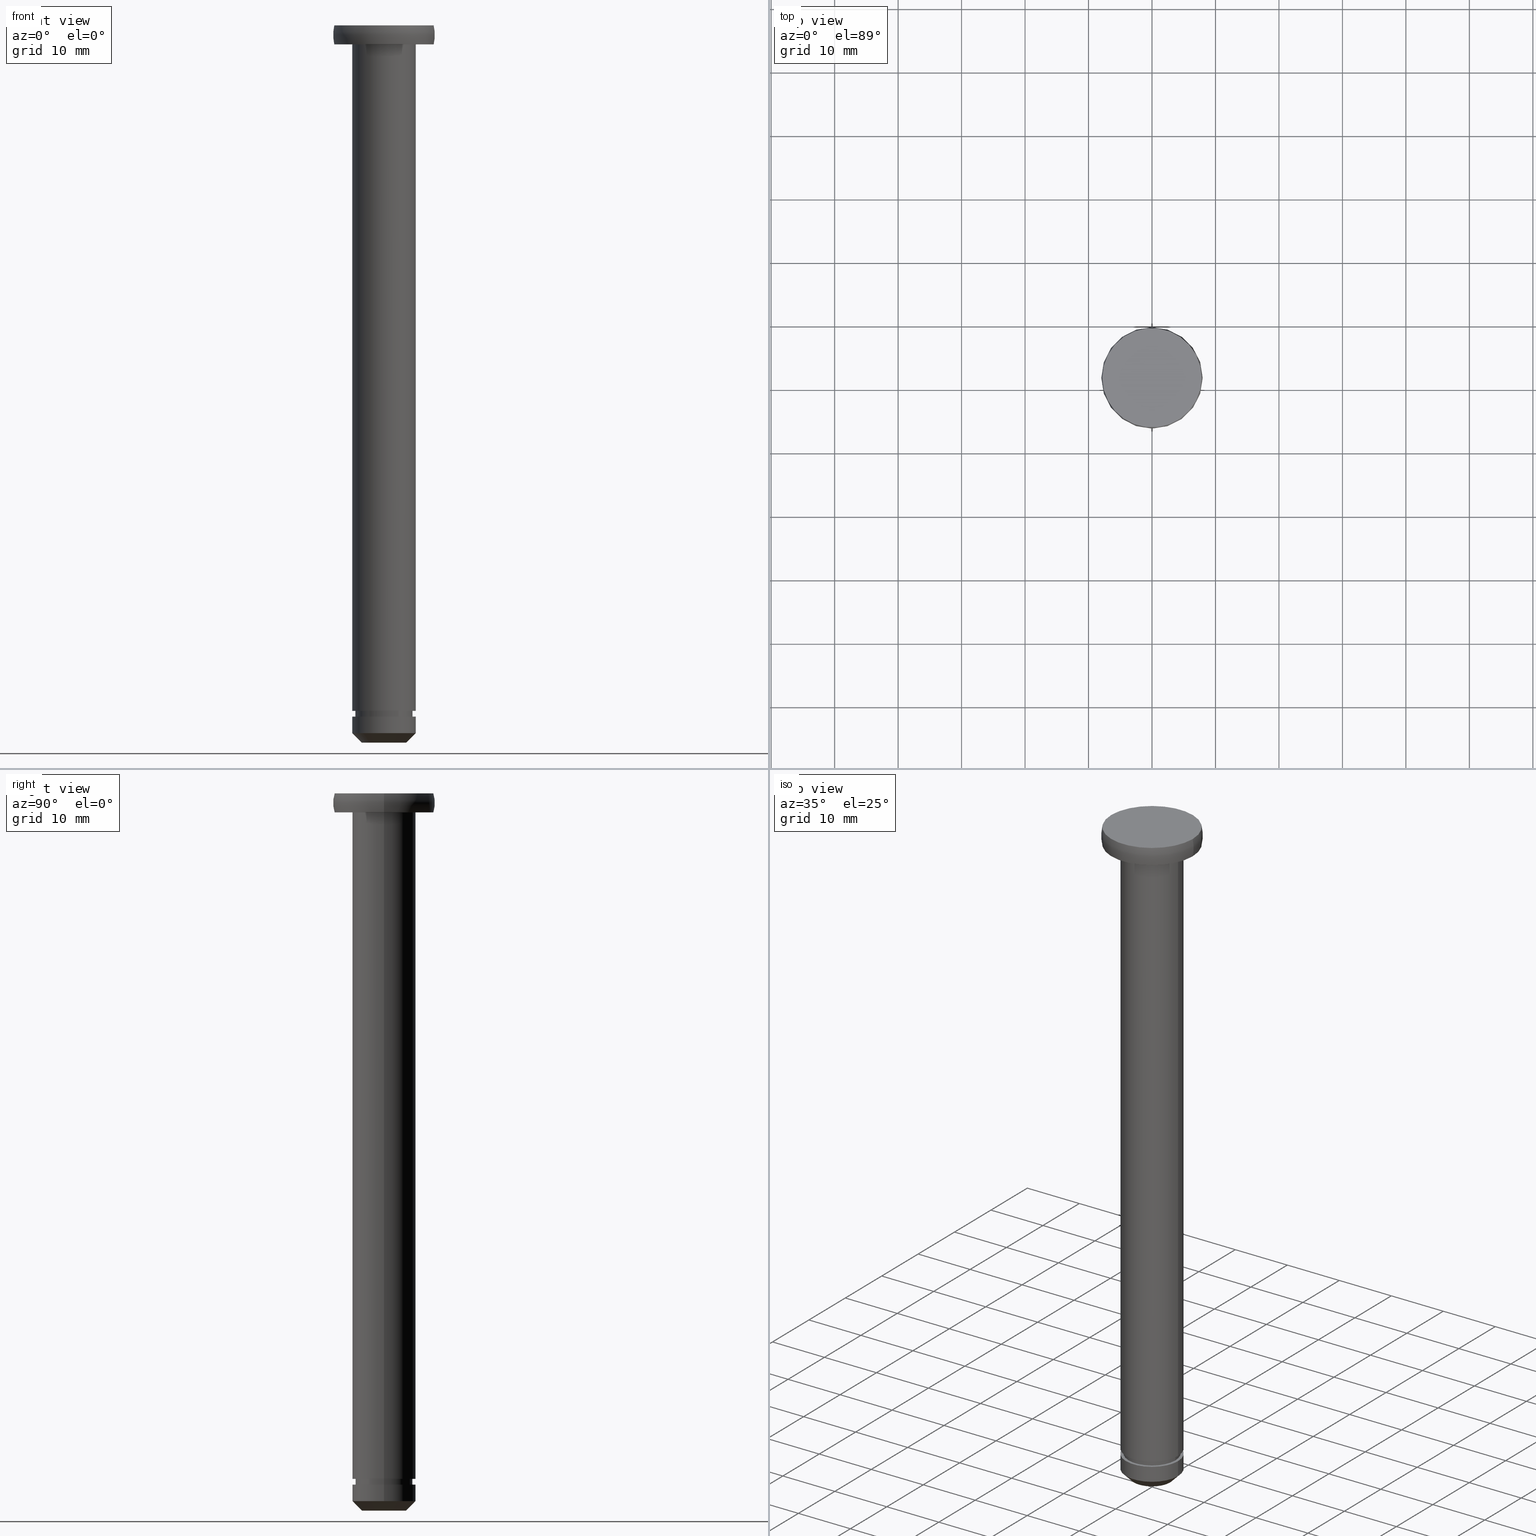
[diagram: canonical four-view strip — front | top / right | iso, engineering-drawing reading convention]
A machine part, canonical four-view strip (front | top / right | iso — engineering-drawing reading convention). The complete STEP part file that produces these views, byte-faithful:
ISO-10303-21;
HEADER;
FILE_DESCRIPTION (( 'STEP AP214' ),
    '1' );
FILE_NAME ('TH_121_10_110.STEP',
    '2016-08-24T02:01:14',
    ( '' ),
    ( '' ),
    'SwSTEP 2.0',
    'SolidWorks 2015',
    '' );
FILE_SCHEMA (( 'AUTOMOTIVE_DESIGN' ));
ENDSEC;

DATA;
#1 =( NAMED_UNIT ( * ) PLANE_ANGLE_UNIT ( ) SI_UNIT ( $, .RADIAN. ) );
#2 = CIRCLE ( 'NONE', #32, 5.000000000000000000 ) ;
#3 = ORIENTED_EDGE ( 'NONE', *, *, #367, .T. ) ;
#4 = APPLICATION_CONTEXT ( 'automotive_design' ) ;
#5 = CIRCLE ( 'NONE', #177, 3.500000000000000900 ) ;
#6 = DIRECTION ( 'NONE',  ( 1.000000000000000000, 0.0000000000000000000, 0.0000000000000000000 ) ) ;
#7 = MECHANICAL_DESIGN_GEOMETRIC_PRESENTATION_REPRESENTATION (  '', ( #426 ), #30 ) ;
#8 = ORIENTED_EDGE ( 'NONE', *, *, #398, .T. ) ;
#9 = TOROIDAL_SURFACE ( 'NONE', #130, 1.357233208769898200, 6.642766791230085800 ) ;
#10 = EDGE_CURVE ( 'NONE', #200, #320, #235, .T. ) ;
#11 = FACE_OUTER_BOUND ( 'NONE', #318, .T. ) ;
#12 = ORIENTED_EDGE ( 'NONE', *, *, #99, .F. ) ;
#13 = ADVANCED_FACE ( 'NONE', ( #199 ), #468, .T. ) ;
#14 = CARTESIAN_POINT ( 'NONE',  ( 4.500000000000000000, 5.510910596163088600E-016, -3.280275378074167100E-014 ) ) ;
#15 = ORIENTED_EDGE ( 'NONE', *, *, #66, .F. ) ;
#16 = AXIS2_PLACEMENT_3D ( 'NONE', #266, #382, #212 ) ;
#17 = CIRCLE ( 'NONE', #107, 4.500000000000000000 ) ;
#18 = TOROIDAL_SURFACE ( 'NONE', #279, 1.357233208769898200, 6.642766791230085800 ) ;
#19 = ORIENTED_EDGE ( 'NONE', *, *, #77, .T. ) ;
#20 = CYLINDRICAL_SURFACE ( 'NONE', #455, 4.999999999999999100 ) ;
#21 = PLANE ( 'NONE',  #150 ) ;
#22 = ORIENTED_EDGE ( 'NONE', *, *, #40, .F. ) ;
#23 = DIRECTION ( 'NONE',  ( -1.000000000000000000, 0.0000000000000000000, 0.0000000000000000000 ) ) ;
#24 = CIRCLE ( 'NONE', #52, 3.500000000000000900 ) ;
#25 = EDGE_CURVE ( 'NONE', #250, #443, #406, .T. ) ;
#26 = DIRECTION ( 'NONE',  ( -1.000000000000000000, 0.0000000000000000000, 0.0000000000000000000 ) ) ;
#27 = EDGE_CURVE ( 'NONE', #417, #320, #2, .T. ) ;
#28 = DIRECTION ( 'NONE',  ( 0.0000000000000000000, 0.0000000000000000000, -1.000000000000000000 ) ) ;
#29 = ORIENTED_EDGE ( 'NONE', *, *, #420, .F. ) ;
#30 =( GEOMETRIC_REPRESENTATION_CONTEXT ( 3 ) GLOBAL_UNCERTAINTY_ASSIGNED_CONTEXT ( ( #65 ) ) GLOBAL_UNIT_ASSIGNED_CONTEXT ( ( #275, #205, #69 ) ) REPRESENTATION_CONTEXT ( 'NONE', 'WORKASPACE' ) );
#31 = DIRECTION ( 'NONE',  ( 0.0000000000000000000, 0.0000000000000000000, -1.000000000000000000 ) ) ;
#32 = AXIS2_PLACEMENT_3D ( 'NONE', #410, #378, #120 ) ;
#33 = DIRECTION ( 'NONE',  ( 0.0000000000000000000, 0.0000000000000000000, -1.000000000000000000 ) ) ;
#34 = CIRCLE ( 'NONE', #294, 5.000000000000000000 ) ;
#35 = CARTESIAN_POINT ( 'NONE',  ( 3.500000000000000900, 0.0000000000000000000, -113.0000000360870000 ) ) ;
#36 = AXIS2_PLACEMENT_3D ( 'NONE', #284, #303, #53 ) ;
#37 = CARTESIAN_POINT ( 'NONE',  ( 0.0000000000000000000, 0.0000000000000000000, 0.0000000000000000000 ) ) ;
#38 = DIRECTION ( 'NONE',  ( 0.0000000000000000000, 0.0000000000000000000, -1.000000000000000000 ) ) ;
#39 = ORIENTED_EDGE ( 'NONE', *, *, #163, .T. ) ;
#40 = EDGE_CURVE ( 'NONE', #93, #78, #370, .T. ) ;
#41 = APPLICATION_PROTOCOL_DEFINITION ( 'draft international standard', 'automotive_design', 1998, #350 ) ;
#42 =( LENGTH_UNIT ( ) NAMED_UNIT ( * ) SI_UNIT ( .MILLI., .METRE. ) );
#43 = ORIENTED_EDGE ( 'NONE', *, *, #257, .F. ) ;
#44 = ADVANCED_FACE ( 'NONE', ( #357, #91 ), #252, .T. ) ;
#45 = EDGE_CURVE ( 'NONE', #320, #417, #445, .T. ) ;
#46 = SURFACE_STYLE_FILL_AREA ( #245 ) ;
#47 = PLANE ( 'NONE',  #429 ) ;
#48 = ORIENTED_EDGE ( 'NONE', *, *, #388, .F. ) ;
#49 = AXIS2_PLACEMENT_3D ( 'NONE', #434, #114, #408 ) ;
#50 = DIRECTION ( 'NONE',  ( 0.0000000000000000000, 0.0000000000000000000, -1.000000000000000000 ) ) ;
#51 = PRODUCT ( 'shaft', 'shaft', '', ( #403 ) ) ;
#52 = AXIS2_PLACEMENT_3D ( 'NONE', #57, #287, #407 ) ;
#53 = DIRECTION ( 'NONE',  ( -1.000000000000000000, 0.0000000000000000000, 0.0000000000000000000 ) ) ;
#54 = DIRECTION ( 'NONE',  ( -1.000000000000000000, 0.0000000000000000000, 0.0000000000000000000 ) ) ;
#55 =( LENGTH_UNIT ( ) NAMED_UNIT ( * ) SI_UNIT ( .MILLI., .METRE. ) );
#56 = VECTOR ( 'NONE', #215, 1000.000000000000000 ) ;
#57 = CARTESIAN_POINT ( 'NONE',  ( 0.0000000000000000000, 0.0000000000000000000, -113.0000000360870000 ) ) ;
#58 = ORIENTED_EDGE ( 'NONE', *, *, #160, .F. ) ;
#59 = ORIENTED_EDGE ( 'NONE', *, *, #309, .T. ) ;
#60 = DIRECTION ( 'NONE',  ( -1.000000000000000000, 0.0000000000000000000, 0.0000000000000000000 ) ) ;
#61 =( REPRESENTATION_RELATIONSHIP ('NONE','NONE', #96, #459 ) REPRESENTATION_RELATIONSHIP_WITH_TRANSFORMATION ( #169 )SHAPE_REPRESENTATION_RELATIONSHIP( ) );
#62 = EDGE_LOOP ( 'NONE', ( #327, #223, #379, #467 ) ) ;
#63 = FACE_OUTER_BOUND ( 'NONE', #299, .T. ) ;
#64 = EDGE_CURVE ( 'NONE', #78, #190, #247, .T. ) ;
#65 = UNCERTAINTY_MEASURE_WITH_UNIT (LENGTH_MEASURE( 1.000000000000000100E-005 ), #275, 'distance_accuracy_value', 'NONE');
#66 = EDGE_CURVE ( 'NONE', #193, #290, #328, .T. ) ;
#67 = ORIENTED_EDGE ( 'NONE', *, *, #158, .T. ) ;
#68 = CYLINDRICAL_SURFACE ( 'NONE', #383, 4.500000000000000000 ) ;
#69 =( NAMED_UNIT ( * ) SI_UNIT ( $, .STERADIAN. ) SOLID_ANGLE_UNIT ( ) );
#70 = SHAPE_REPRESENTATION_RELATIONSHIP ( 'NONE' , 'NONE' ,  #459, #413 ) ;
#71 = FACE_BOUND ( 'NONE', #224, .T. ) ;
#72 = DIRECTION ( 'NONE',  ( -1.000000000000000000, 0.0000000000000000000, 0.0000000000000000000 ) ) ;
#73 = CIRCLE ( 'NONE', #125, 7.828427118366799500 ) ;
#74 = DIRECTION ( 'NONE',  ( 0.0000000000000000000, 0.0000000000000000000, -1.000000000000000000 ) ) ;
#75 = ORIENTED_EDGE ( 'NONE', *, *, #27, .F. ) ;
#76 = FACE_OUTER_BOUND ( 'NONE', #126, .T. ) ;
#77 = EDGE_CURVE ( 'NONE', #262, #151, #73, .T. ) ;
#78 = VERTEX_POINT ( 'NONE', #259 ) ;
#79 = ADVANCED_FACE ( 'NONE', ( #387, #397 ), #21, .T. ) ;
#80 = CARTESIAN_POINT ( 'NONE',  ( 0.0000000000000000000, 0.0000000000000000000, -108.0000000360869900 ) ) ;
#81 = VERTEX_POINT ( 'NONE', #373 ) ;
#82 = CONICAL_SURFACE ( 'NONE', #304, 3.500000000000000900, 0.7853981633974466100 ) ;
#83 = LINE ( 'NONE', #355, #438 ) ;
#84 = AXIS2_PLACEMENT_3D ( 'NONE', #305, #50, #268 ) ;
#85 = DIRECTION ( 'NONE',  ( 0.0000000000000000000, 0.0000000000000000000, -1.000000000000000000 ) ) ;
#86 = CIRCLE ( 'NONE', #244, 5.000000000000000000 ) ;
#87 = ORIENTED_EDGE ( 'NONE', *, *, #158, .F. ) ;
#88 = CARTESIAN_POINT ( 'NONE',  ( 4.999999999999997300, 0.0000000000000000000, -111.5000000360870000 ) ) ;
#89 = LINE ( 'NONE', #134, #376 ) ;
#90 = DIRECTION ( 'NONE',  ( 0.0000000000000000000, 0.0000000000000000000, -1.000000000000000000 ) ) ;
#91 = FACE_OUTER_BOUND ( 'NONE', #267, .T. ) ;
#92 = EDGE_CURVE ( 'NONE', #324, #203, #34, .T. ) ;
#93 = VERTEX_POINT ( 'NONE', #261 ) ;
#94 = AXIS2_PLACEMENT_3D ( 'NONE', #37, #211, #97 ) ;
#95 = CARTESIAN_POINT ( 'NONE',  ( 7.828427118366799500, 9.587058212866239700E-016, -3.280275356898344000E-014 ) ) ;
#96 = SHAPE_REPRESENTATION ( 'TH_121_10_110', ( #164, #123 ), #142 ) ;
#97 = DIRECTION ( 'NONE',  ( 1.000000000000000000, 0.0000000000000000000, 0.0000000000000000000 ) ) ;
#98 = CARTESIAN_POINT ( 'NONE',  ( 0.0000000000000000000, 0.0000000000000000000, -113.0000000360870000 ) ) ;
#99 = EDGE_CURVE ( 'NONE', #203, #159, #83, .T. ) ;
#100 = CARTESIAN_POINT ( 'NONE',  ( 0.0000000000000000000, 0.0000000000000000000, -108.0000000360869900 ) ) ;
#101 = EDGE_LOOP ( 'NONE', ( #8, #447 ) ) ;
#102 = CARTESIAN_POINT ( 'NONE',  ( -3.500000000000000900, 5.204748896376249700E-016, -113.0000000360870000 ) ) ;
#103 = FACE_OUTER_BOUND ( 'NONE', #234, .T. ) ;
#104 = MANIFOLD_SOLID_BREP ( '��]1', #419 ) ;
#105 = DIRECTION ( 'NONE',  ( 0.7071067811865463500, 0.0000000000000000000, 0.7071067811865487900 ) ) ;
#106 = CIRCLE ( 'NONE', #197, 5.000000000000000000 ) ;
#107 = AXIS2_PLACEMENT_3D ( 'NONE', #100, #427, #60 ) ;
#108 =( NAMED_UNIT ( * ) PLANE_ANGLE_UNIT ( ) SI_UNIT ( $, .RADIAN. ) );
#109 =( NAMED_UNIT ( * ) SI_UNIT ( $, .STERADIAN. ) SOLID_ANGLE_UNIT ( ) );
#110 = PRODUCT_DEFINITION_SHAPE ( 'NONE', 'NONE',  #232 ) ;
#111 = SURFACE_SIDE_STYLE ('',( #46 ) ) ;
#112 = DIRECTION ( 'NONE',  ( 1.000000000000000000, 0.0000000000000000000, 0.0000000000000000000 ) ) ;
#113 = ORIENTED_EDGE ( 'NONE', *, *, #396, .F. ) ;
#114 = DIRECTION ( 'NONE',  ( 0.0000000000000000000, 0.0000000000000000000, -1.000000000000000000 ) ) ;
#115 = EDGE_LOOP ( 'NONE', ( #29, #371 ) ) ;
#116 = DIRECTION ( 'NONE',  ( 0.0000000000000000000, -0.0000000000000000000, 1.000000000000000000 ) ) ;
#117 = ORIENTED_EDGE ( 'NONE', *, *, #388, .T. ) ;
#118 = CIRCLE ( 'NONE', #326, 4.500000000000000000 ) ;
#119 = ADVANCED_FACE ( 'NONE', ( #103 ), #9, .T. ) ;
#120 = DIRECTION ( 'NONE',  ( -1.000000000000000000, 0.0000000000000000000, 0.0000000000000000000 ) ) ;
#121 = ADVANCED_FACE ( 'NONE', ( #152, #71 ), #47, .T. ) ;
#122 = EDGE_LOOP ( 'NONE', ( #463, #117, #3, #213 ) ) ;
#123 = AXIS2_PLACEMENT_3D ( 'NONE', #464, #236, #6 ) ;
#124 = DIRECTION ( 'NONE',  ( 0.0000000000000000000, 0.0000000000000000000, -1.000000000000000000 ) ) ;
#125 = AXIS2_PLACEMENT_3D ( 'NONE', #280, #191, #210 ) ;
#126 = EDGE_LOOP ( 'NONE', ( #113, #453, #219, #366 ) ) ;
#127 = DIRECTION ( 'NONE',  ( 0.0000000000000000000, 0.0000000000000000000, -1.000000000000000000 ) ) ;
#128 = DIRECTION ( 'NONE',  ( 1.000000000000000000, 0.0000000000000000000, 0.0000000000000000000 ) ) ;
#129 = EDGE_LOOP ( 'NONE', ( #180, #67, #207, #183 ) ) ;
#130 = AXIS2_PLACEMENT_3D ( 'NONE', #361, #146, #402 ) ;
#131 = AXIS2_PLACEMENT_3D ( 'NONE', #136, #349, #23 ) ;
#132 = ORIENTED_EDGE ( 'NONE', *, *, #335, .T. ) ;
#133 = ORIENTED_EDGE ( 'NONE', *, *, #10, .T. ) ;
#134 = CARTESIAN_POINT ( 'NONE',  ( 4.999999999999999100, 6.123233995736765300E-016, -3.280275378074167100E-014 ) ) ;
#135 = CARTESIAN_POINT ( 'NONE',  ( 0.0000000000000000000, 0.0000000000000000000, -3.000000018043495100 ) ) ;
#136 = CARTESIAN_POINT ( 'NONE',  ( 0.0000000000000000000, 0.0000000000000000000, -108.9000000360869900 ) ) ;
#137 = CARTESIAN_POINT ( 'NONE',  ( -5.000000000000000000, 0.0000000000000000000, -3.280275378074167100E-014 ) ) ;
#138 = CARTESIAN_POINT ( 'NONE',  ( 5.000000000000000000, 6.123233995736766300E-016, -3.280275378074167100E-014 ) ) ;
#139 = DIRECTION ( 'NONE',  ( -1.000000000000000000, 0.0000000000000000000, 0.0000000000000000000 ) ) ;
#140 = CARTESIAN_POINT ( 'NONE',  ( 0.0000000000000000000, 0.0000000000000000000, 0.0000000000000000000 ) ) ;
#141 = CARTESIAN_POINT ( 'NONE',  ( 0.0000000000000000000, 0.0000000000000000000, -3.280275378074167100E-014 ) ) ;
#142 =( GEOMETRIC_REPRESENTATION_CONTEXT ( 3 ) GLOBAL_UNCERTAINTY_ASSIGNED_CONTEXT ( ( #185 ) ) GLOBAL_UNIT_ASSIGNED_CONTEXT ( ( #55, #1, #109 ) ) REPRESENTATION_CONTEXT ( 'NONE', 'WORKASPACE' ) );
#143 = DIRECTION ( 'NONE',  ( -1.000000000000000000, 0.0000000000000000000, -0.0000000000000000000 ) ) ;
#144 = DIRECTION ( 'NONE',  ( 1.000000000000000000, 0.0000000000000000000, 0.0000000000000000000 ) ) ;
#145 = ORIENTED_EDGE ( 'NONE', *, *, #188, .T. ) ;
#146 = DIRECTION ( 'NONE',  ( 0.0000000000000000000, 0.0000000000000000000, -1.000000000000000000 ) ) ;
#147 = CARTESIAN_POINT ( 'NONE',  ( 0.0000000000000000000, 0.0000000000000000000, -3.280275378074167100E-014 ) ) ;
#148 = ADVANCED_FACE ( 'NONE', ( #11 ), #248, .T. ) ;
#149 = AXIS2_PLACEMENT_3D ( 'NONE', #167, #424, #139 ) ;
#150 = AXIS2_PLACEMENT_3D ( 'NONE', #241, #220, #297 ) ;
#151 = VERTEX_POINT ( 'NONE', #221 ) ;
#152 = FACE_OUTER_BOUND ( 'NONE', #286, .T. ) ;
#153 = CARTESIAN_POINT ( 'NONE',  ( 0.0000000000000000000, 0.0000000000000000000, -108.9000000360869900 ) ) ;
#154 = LINE ( 'NONE', #138, #329 ) ;
#155 = EDGE_LOOP ( 'NONE', ( #19, #145 ) ) ;
#156 = COLOUR_RGB ( '',0.7921568627450980000, 0.8196078431372548800, 0.9333333333333333500 ) ;
#157 = PRODUCT_CONTEXT ( 'NONE', #350, 'mechanical' ) ;
#158 = EDGE_CURVE ( 'NONE', #81, #417, #154, .T. ) ;
#159 = VERTEX_POINT ( 'NONE', #365 ) ;
#160 = EDGE_CURVE ( 'NONE', #290, #193, #258, .T. ) ;
#161 = FACE_OUTER_BOUND ( 'NONE', #101, .T. ) ;
#162 = DIRECTION ( 'NONE',  ( 0.0000000000000000000, -0.0000000000000000000, 1.000000000000000000 ) ) ;
#163 = EDGE_CURVE ( 'NONE', #182, #190, #418, .T. ) ;
#164 = AXIS2_PLACEMENT_3D ( 'NONE', #140, #390, #112 ) ;
#165 = DIRECTION ( 'NONE',  ( -1.000000000000000000, -1.224646799147353200E-016, 0.0000000000000000000 ) ) ;
#166 = EDGE_LOOP ( 'NONE', ( #87, #277, #133, #75 ) ) ;
#167 = CARTESIAN_POINT ( 'NONE',  ( 0.0000000000000000000, 0.0000000000000000000, -3.280275378074167100E-014 ) ) ;
#168 = PRESENTATION_STYLE_ASSIGNMENT (( #321 ) ) ;
#169 = ITEM_DEFINED_TRANSFORMATION ( 'NONE', 'NONE', #123,  #405 ) ;
#170 = CARTESIAN_POINT ( 'NONE',  ( -7.828427118366799500, 0.0000000000000000000, -3.280275356898344000E-014 ) ) ;
#171 = DIRECTION ( 'NONE',  ( 0.0000000000000000000, 0.0000000000000000000, -1.000000000000000000 ) ) ;
#172 = CARTESIAN_POINT ( 'NONE',  ( -5.000000000000000000, 0.0000000000000000000, -108.9000000360869900 ) ) ;
#173 = ORIENTED_EDGE ( 'NONE', *, *, #25, .T. ) ;
#174 = DIRECTION ( 'NONE',  ( 0.0000000000000000000, 0.0000000000000000000, -1.000000000000000000 ) ) ;
#175 = CARTESIAN_POINT ( 'NONE',  ( 0.0000000000000000000, 0.0000000000000000000, -1.500000009021790000 ) ) ;
#176 = DIRECTION ( 'NONE',  ( 0.0000000000000000000, 0.0000000000000000000, -1.000000000000000000 ) ) ;
#177 = AXIS2_PLACEMENT_3D ( 'NONE', #421, #454, #272 ) ;
#178 = APPLICATION_PROTOCOL_DEFINITION ( 'draft international standard', 'automotive_design', 1998, #274 ) ;
#179 = CARTESIAN_POINT ( 'NONE',  ( -4.500000000000000000, 0.0000000000000000000, -3.280275378074167100E-014 ) ) ;
#180 = ORIENTED_EDGE ( 'NONE', *, *, #420, .T. ) ;
#181 = CARTESIAN_POINT ( 'NONE',  ( 0.0000000000000000000, 0.0000000000000000000, -3.000000018043520000 ) ) ;
#182 = VERTEX_POINT ( 'NONE', #306 ) ;
#183 = ORIENTED_EDGE ( 'NONE', *, *, #10, .F. ) ;
#184 = ADVANCED_FACE ( 'NONE', ( #189 ), #18, .T. ) ;
#185 = UNCERTAINTY_MEASURE_WITH_UNIT (LENGTH_MEASURE( 1.000000000000000100E-005 ), #55, 'distance_accuracy_value', 'NONE');
#186 = DIRECTION ( 'NONE',  ( 1.000000000000000000, 0.0000000000000000000, 0.0000000000000000000 ) ) ;
#187 = VECTOR ( 'NONE', #425, 999.9999999999998900 ) ;
#188 = EDGE_CURVE ( 'NONE', #151, #262, #330, .T. ) ;
#189 = FACE_OUTER_BOUND ( 'NONE', #450, .T. ) ;
#190 = VERTEX_POINT ( 'NONE', #362 ) ;
#191 = DIRECTION ( 'NONE',  ( 0.0000000000000000000, 0.0000000000000000000, -1.000000000000000000 ) ) ;
#192 = PRODUCT_DEFINITION ( 'UNKNOWN', '', #310, #449 ) ;
#193 = VERTEX_POINT ( 'NONE', #170 ) ;
#194 = ORIENTED_EDGE ( 'NONE', *, *, #394, .F. ) ;
#195 = DIRECTION ( 'NONE',  ( 0.0000000000000000000, 0.0000000000000000000, 1.000000000000000000 ) ) ;
#196 = CIRCLE ( 'NONE', #84, 4.999999999999997300 ) ;
#197 = AXIS2_PLACEMENT_3D ( 'NONE', #430, #28, #54 ) ;
#198 = ORIENTED_EDGE ( 'NONE', *, *, #27, .T. ) ;
#199 = FACE_OUTER_BOUND ( 'NONE', #166, .T. ) ;
#200 = VERTEX_POINT ( 'NONE', #351 ) ;
#201 = STYLED_ITEM ( 'NONE', ( #168 ), #104 ) ;
#202 = DIRECTION ( 'NONE',  ( 1.000000000000000000, 0.0000000000000000000, 0.0000000000000000000 ) ) ;
#203 = VERTEX_POINT ( 'NONE', #172 ) ;
#204 = CARTESIAN_POINT ( 'NONE',  ( 0.0000000000000000000, 0.0000000000000000000, -113.0000000360870000 ) ) ;
#205 =( NAMED_UNIT ( * ) PLANE_ANGLE_UNIT ( ) SI_UNIT ( $, .RADIAN. ) );
#206 = DIRECTION ( 'NONE',  ( 0.0000000000000000000, 0.0000000000000000000, -1.000000000000000000 ) ) ;
#207 = ORIENTED_EDGE ( 'NONE', *, *, #45, .F. ) ;
#208 = DIRECTION ( 'NONE',  ( 0.0000000000000000000, 0.0000000000000000000, -1.000000000000000000 ) ) ;
#209 = DIRECTION ( 'NONE',  ( 1.000000000000000000, 0.0000000000000000000, 0.0000000000000000000 ) ) ;
#210 = DIRECTION ( 'NONE',  ( -1.000000000000000000, 0.0000000000000000000, 0.0000000000000000000 ) ) ;
#211 = DIRECTION ( 'NONE',  ( 0.0000000000000000000, 0.0000000000000000000, 1.000000000000000000 ) ) ;
#212 = DIRECTION ( 'NONE',  ( 0.0000000000000000000, 0.0000000000000000000, -1.000000000000000000 ) ) ;
#213 = ORIENTED_EDGE ( 'NONE', *, *, #25, .F. ) ;
#214 = AXIS2_PLACEMENT_3D ( 'NONE', #363, #124, #331 ) ;
#215 = DIRECTION ( 'NONE',  ( 0.0000000000000000000, 0.0000000000000000000, -1.000000000000000000 ) ) ;
#216 = DIRECTION ( 'NONE',  ( 0.0000000000000000000, 0.0000000000000000000, -1.000000000000000000 ) ) ;
#217 = VERTEX_POINT ( 'NONE', #102 ) ;
#218 = ADVANCED_FACE ( 'NONE', ( #76 ), #296, .T. ) ;
#219 = ORIENTED_EDGE ( 'NONE', *, *, #99, .T. ) ;
#220 = DIRECTION ( 'NONE',  ( 0.0000000000000000000, 0.0000000000000000000, -1.000000000000000000 ) ) ;
#221 = CARTESIAN_POINT ( 'NONE',  ( 7.828427118366799500, 9.587058212866239700E-016, -3.000000018043520000 ) ) ;
#222 = CIRCLE ( 'NONE', #16, 6.642766791230085800 ) ;
#223 = ORIENTED_EDGE ( 'NONE', *, *, #40, .T. ) ;
#224 = EDGE_LOOP ( 'NONE', ( #43, #194 ) ) ;
#225 = PRESENTATION_STYLE_ASSIGNMENT (( #386 ) ) ;
#226 = CIRCLE ( 'NONE', #412, 4.500000000000000000 ) ;
#227 =( GEOMETRIC_REPRESENTATION_CONTEXT ( 3 ) GLOBAL_UNCERTAINTY_ASSIGNED_CONTEXT ( ( #229 ) ) GLOBAL_UNIT_ASSIGNED_CONTEXT ( ( #364, #108, #316 ) ) REPRESENTATION_CONTEXT ( 'NONE', 'WORKASPACE' ) );
#228 =( NAMED_UNIT ( * ) SI_UNIT ( $, .STERADIAN. ) SOLID_ANGLE_UNIT ( ) );
#229 = UNCERTAINTY_MEASURE_WITH_UNIT (LENGTH_MEASURE( 1.000000000000000100E-005 ), #364, 'distance_accuracy_value', 'NONE');
#230 = PRODUCT ( 'TH_121_10_110', 'TH_121_10_110', '', ( #157 ) ) ;
#231 = APPLICATION_PROTOCOL_DEFINITION ( 'draft international standard', 'automotive_design', 1998, #465 ) ;
#232 = PRODUCT_DEFINITION ( 'UNKNOWN', '', #263, #422 ) ;
#233 = CARTESIAN_POINT ( 'NONE',  ( 7.828427118366799500, 0.0000000000000000000, -3.280275367486255800E-014 ) ) ;
#234 = EDGE_LOOP ( 'NONE', ( #358, #391, #302, #293 ) ) ;
#235 = LINE ( 'NONE', #137, #451 ) ;
#236 = DIRECTION ( 'NONE',  ( 0.0000000000000000000, 0.0000000000000000000, 1.000000000000000000 ) ) ;
#237 = FACE_OUTER_BOUND ( 'NONE', #129, .T. ) ;
#238 = CARTESIAN_POINT ( 'NONE',  ( 0.0000000000000000000, 0.0000000000000000000, -113.0000000360870000 ) ) ;
#239 = ORIENTED_EDGE ( 'NONE', *, *, #45, .T. ) ;
#240 = DIRECTION ( 'NONE',  ( -1.000000000000000000, 0.0000000000000000000, 0.0000000000000000000 ) ) ;
#241 = CARTESIAN_POINT ( 'NONE',  ( 5.000000000000000000, 0.0000000000000000000, -3.000000018043507600 ) ) ;
#242 = DIRECTION ( 'NONE',  ( -0.0000000000000000000, -0.0000000000000000000, 1.000000000000000000 ) ) ;
#243 = APPLICATION_PROTOCOL_DEFINITION ( 'draft international standard', 'automotive_design', 1998, #4 ) ;
#244 = AXIS2_PLACEMENT_3D ( 'NONE', #135, #176, #317 ) ;
#245 = FILL_AREA_STYLE ('',( #313 ) ) ;
#246 = FILL_AREA_STYLE ('',( #462 ) ) ;
#247 = CIRCLE ( 'NONE', #214, 4.500000000000000000 ) ;
#248 = CONICAL_SURFACE ( 'NONE', #461, 3.500000000000000900, 0.7853981633974466100 ) ;
#249 = DIRECTION ( 'NONE',  ( -1.000000000000000000, 0.0000000000000000000, 0.0000000000000000000 ) ) ;
#250 = VERTEX_POINT ( 'NONE', #35 ) ;
#251 = ADVANCED_FACE ( 'NONE', ( #380 ), #68, .T. ) ;
#252 = PLANE ( 'NONE',  #260 ) ;
#253 = AXIS2_PLACEMENT_3D ( 'NONE', #181, #206, #314 ) ;
#254 = ORIENTED_EDGE ( 'NONE', *, *, #64, .F. ) ;
#255 = ADVANCED_FACE ( 'NONE', ( #334 ), #82, .T. ) ;
#256 = AXIS2_PLACEMENT_3D ( 'NONE', #80, #85, #414 ) ;
#257 = EDGE_CURVE ( 'NONE', #182, #93, #118, .T. ) ;
#258 = CIRCLE ( 'NONE', #49, 7.828427118366799500 ) ;
#259 = CARTESIAN_POINT ( 'NONE',  ( 4.500000000000000000, 5.510910596163088600E-016, -108.9000000360869900 ) ) ;
#260 = AXIS2_PLACEMENT_3D ( 'NONE', #368, #116, #144 ) ;
#261 = CARTESIAN_POINT ( 'NONE',  ( 4.500000000000000000, 5.510910596163088600E-016, -108.0000000360869900 ) ) ;
#262 = VERTEX_POINT ( 'NONE', #336 ) ;
#263 = PRODUCT_DEFINITION_FORMATION_WITH_SPECIFIED_SOURCE ( 'ANY', '', #230, .NOT_KNOWN. ) ;
#264 = SHAPE_DEFINITION_REPRESENTATION ( #344, #459 ) ;
#265 = MECHANICAL_DESIGN_GEOMETRIC_PRESENTATION_REPRESENTATION (  '', ( #201 ), #227 ) ;
#266 = CARTESIAN_POINT ( 'NONE',  ( -1.357233208769898200, 0.0000000000000000000, -1.500000009021790000 ) ) ;
#267 = EDGE_LOOP ( 'NONE', ( #348, #273 ) ) ;
#268 = DIRECTION ( 'NONE',  ( -1.000000000000000000, 0.0000000000000000000, 0.0000000000000000000 ) ) ;
#269 = ORIENTED_EDGE ( 'NONE', *, *, #64, .T. ) ;
#270 = FACE_OUTER_BOUND ( 'NONE', #384, .T. ) ;
#271 = AXIS2_PLACEMENT_3D ( 'NONE', #233, #162, #128 ) ;
#272 = DIRECTION ( 'NONE',  ( -1.000000000000000000, 0.0000000000000000000, 0.0000000000000000000 ) ) ;
#273 = ORIENTED_EDGE ( 'NONE', *, *, #92, .F. ) ;
#274 = APPLICATION_CONTEXT ( 'automotive_design' ) ;
#275 =( LENGTH_UNIT ( ) NAMED_UNIT ( * ) SI_UNIT ( .MILLI., .METRE. ) );
#276 = DIRECTION ( 'NONE',  ( 0.0000000000000000000, 0.0000000000000000000, -1.000000000000000000 ) ) ;
#277 = ORIENTED_EDGE ( 'NONE', *, *, #409, .T. ) ;
#278 = CARTESIAN_POINT ( 'NONE',  ( 0.0000000000000000000, 0.0000000000000000000, -111.5000000360870000 ) ) ;
#279 = AXIS2_PLACEMENT_3D ( 'NONE', #175, #31, #354 ) ;
#280 = CARTESIAN_POINT ( 'NONE',  ( 0.0000000000000000000, 0.0000000000000000000, -3.000000018043520000 ) ) ;
#281 = ORIENTED_EDGE ( 'NONE', *, *, #188, .F. ) ;
#282 = DIRECTION ( 'NONE',  ( -1.224646799147353200E-016, 1.000000000000000000, 0.0000000000000000000 ) ) ;
#283 = CYLINDRICAL_SURFACE ( 'NONE', #149, 4.500000000000000000 ) ;
#284 = CARTESIAN_POINT ( 'NONE',  ( 0.0000000000000000000, 0.0000000000000000000, -3.280275378074167100E-014 ) ) ;
#285 = CARTESIAN_POINT ( 'NONE',  ( 0.0000000000000000000, 0.0000000000000000000, -3.280275378074167100E-014 ) ) ;
#286 = EDGE_LOOP ( 'NONE', ( #239, #198 ) ) ;
#287 = DIRECTION ( 'NONE',  ( 0.0000000000000000000, 0.0000000000000000000, -1.000000000000000000 ) ) ;
#288 = PRODUCT_RELATED_PRODUCT_CATEGORY ( 'part', '', ( #230 ) ) ;
#289 = DIRECTION ( 'NONE',  ( -1.000000000000000000, 0.0000000000000000000, 0.0000000000000000000 ) ) ;
#290 = VERTEX_POINT ( 'NONE', #95 ) ;
#291 = CARTESIAN_POINT ( 'NONE',  ( 0.0000000000000000000, 0.0000000000000000000, -3.280275356898344000E-014 ) ) ;
#292 = ADVANCED_FACE ( 'NONE', ( #63 ), #20, .T. ) ;
#293 = ORIENTED_EDGE ( 'NONE', *, *, #335, .F. ) ;
#294 = AXIS2_PLACEMENT_3D ( 'NONE', #153, #353, #289 ) ;
#295 = FACE_OUTER_BOUND ( 'NONE', #62, .T. ) ;
#296 = CYLINDRICAL_SURFACE ( 'NONE', #360, 4.999999999999999100 ) ;
#297 = DIRECTION ( 'NONE',  ( -1.000000000000000000, 0.0000000000000000000, -0.0000000000000000000 ) ) ;
#298 = AXIS2_PLACEMENT_3D ( 'NONE', #392, #282, #165 ) ;
#299 = EDGE_LOOP ( 'NONE', ( #312, #404, #337, #12 ) ) ;
#300 = PRESENTATION_LAYER_ASSIGNMENT (  '', '', ( #201 ) ) ;
#301 = CYLINDRICAL_SURFACE ( 'NONE', #36, 5.000000000000000000 ) ;
#302 = ORIENTED_EDGE ( 'NONE', *, *, #77, .F. ) ;
#303 = DIRECTION ( 'NONE',  ( 0.0000000000000000000, 0.0000000000000000000, -1.000000000000000000 ) ) ;
#304 = AXIS2_PLACEMENT_3D ( 'NONE', #98, #359, #209 ) ;
#305 = CARTESIAN_POINT ( 'NONE',  ( 0.0000000000000000000, 0.0000000000000000000, -111.5000000360870000 ) ) ;
#306 = CARTESIAN_POINT ( 'NONE',  ( -4.500000000000000000, 0.0000000000000000000, -108.0000000360869900 ) ) ;
#307 = EDGE_LOOP ( 'NONE', ( #22, #333, #39, #254 ) ) ;
#308 = CARTESIAN_POINT ( 'NONE',  ( 5.000000000000000000, 6.123233995736766300E-016, -108.9000000360869900 ) ) ;
#309 = EDGE_CURVE ( 'NONE', #443, #159, #345, .T. ) ;
#310 = PRODUCT_DEFINITION_FORMATION_WITH_SPECIFIED_SOURCE ( 'ANY', '', #51, .NOT_KNOWN. ) ;
#311 = DIRECTION ( 'NONE',  ( -1.000000000000000000, 0.0000000000000000000, 0.0000000000000000000 ) ) ;
#312 = ORIENTED_EDGE ( 'NONE', *, *, #374, .T. ) ;
#313 = FILL_AREA_STYLE_COLOUR ( '', #156 ) ;
#314 = DIRECTION ( 'NONE',  ( -1.000000000000000000, 0.0000000000000000000, 0.0000000000000000000 ) ) ;
#315 =( NAMED_UNIT ( * ) PLANE_ANGLE_UNIT ( ) SI_UNIT ( $, .RADIAN. ) );
#316 =( NAMED_UNIT ( * ) SI_UNIT ( $, .STERADIAN. ) SOLID_ANGLE_UNIT ( ) );
#317 = DIRECTION ( 'NONE',  ( -1.000000000000000000, 0.0000000000000000000, 0.0000000000000000000 ) ) ;
#318 = EDGE_LOOP ( 'NONE', ( #48, #416, #173, #59 ) ) ;
#319 = DIRECTION ( 'NONE',  ( 0.0000000000000000000, 0.0000000000000000000, -1.000000000000000000 ) ) ;
#320 = VERTEX_POINT ( 'NONE', #322 ) ;
#321 = SURFACE_STYLE_USAGE ( .BOTH. , #111 ) ;
#322 = CARTESIAN_POINT ( 'NONE',  ( -5.000000000000000000, 0.0000000000000000000, -108.0000000360869900 ) ) ;
#323 = SURFACE_STYLE_FILL_AREA ( #246 ) ;
#324 = VERTEX_POINT ( 'NONE', #308 ) ;
#325 = ADVANCED_FACE ( 'NONE', ( #237 ), #301, .T. ) ;
#326 = AXIS2_PLACEMENT_3D ( 'NONE', #400, #458, #343 ) ;
#327 = ORIENTED_EDGE ( 'NONE', *, *, #257, .T. ) ;
#328 = CIRCLE ( 'NONE', #415, 7.828427118366799500 ) ;
#329 = VECTOR ( 'NONE', #74, 1000.000000000000000 ) ;
#330 = CIRCLE ( 'NONE', #253, 7.828427118366799500 ) ;
#331 = DIRECTION ( 'NONE',  ( -1.000000000000000000, 0.0000000000000000000, 0.0000000000000000000 ) ) ;
#332 = PRODUCT_RELATED_PRODUCT_CATEGORY ( 'part', '', ( #51 ) ) ;
#333 = ORIENTED_EDGE ( 'NONE', *, *, #394, .T. ) ;
#334 = FACE_OUTER_BOUND ( 'NONE', #122, .T. ) ;
#335 = EDGE_CURVE ( 'NONE', #193, #262, #222, .T. ) ;
#336 = CARTESIAN_POINT ( 'NONE',  ( -7.828427118366799500, 0.0000000000000000000, -3.000000018043520000 ) ) ;
#337 = ORIENTED_EDGE ( 'NONE', *, *, #367, .F. ) ;
#338 = CARTESIAN_POINT ( 'NONE',  ( 5.000000000000000000, 6.123233995736766300E-016, -108.0000000360869900 ) ) ;
#339 = EDGE_CURVE ( 'NONE', #190, #78, #226, .T. ) ;
#340 = VECTOR ( 'NONE', #446, 1000.000000000000000 ) ;
#341 = PLANE ( 'NONE',  #271 ) ;
#342 =( GEOMETRIC_REPRESENTATION_CONTEXT ( 3 ) GLOBAL_UNCERTAINTY_ASSIGNED_CONTEXT ( ( #456 ) ) GLOBAL_UNIT_ASSIGNED_CONTEXT ( ( #42, #315, #228 ) ) REPRESENTATION_CONTEXT ( 'NONE', 'WORKASPACE' ) );
#343 = DIRECTION ( 'NONE',  ( -1.000000000000000000, 0.0000000000000000000, 0.0000000000000000000 ) ) ;
#344 = PRODUCT_DEFINITION_SHAPE ( 'NONE', 'NONE',  #192 ) ;
#345 = CIRCLE ( 'NONE', #437, 4.999999999999997300 ) ;
#346 = CARTESIAN_POINT ( 'NONE',  ( 0.0000000000000000000, 0.0000000000000000000, -108.9000000360869900 ) ) ;
#347 = EDGE_CURVE ( 'NONE', #217, #250, #24, .T. ) ;
#348 = ORIENTED_EDGE ( 'NONE', *, *, #374, .F. ) ;
#349 = DIRECTION ( 'NONE',  ( 0.0000000000000000000, 0.0000000000000000000, -1.000000000000000000 ) ) ;
#350 = APPLICATION_CONTEXT ( 'automotive_design' ) ;
#351 = CARTESIAN_POINT ( 'NONE',  ( -5.000000000000000000, 0.0000000000000000000, -3.000000018043495100 ) ) ;
#352 = CONTEXT_DEPENDENT_SHAPE_REPRESENTATION ( #61, #431 ) ;
#353 = DIRECTION ( 'NONE',  ( 0.0000000000000000000, 0.0000000000000000000, -1.000000000000000000 ) ) ;
#354 = DIRECTION ( 'NONE',  ( -1.000000000000000000, 0.0000000000000000000, 0.0000000000000000000 ) ) ;
#355 = CARTESIAN_POINT ( 'NONE',  ( -4.999999999999999100, 0.0000000000000000000, -3.280275378074167100E-014 ) ) ;
#356 = PLANE ( 'NONE',  #377 ) ;
#357 = FACE_BOUND ( 'NONE', #389, .T. ) ;
#358 = ORIENTED_EDGE ( 'NONE', *, *, #66, .T. ) ;
#359 = DIRECTION ( 'NONE',  ( -0.0000000000000000000, -0.0000000000000000000, 1.000000000000000000 ) ) ;
#360 = AXIS2_PLACEMENT_3D ( 'NONE', #285, #452, #240 ) ;
#361 = CARTESIAN_POINT ( 'NONE',  ( 0.0000000000000000000, 0.0000000000000000000, -1.500000009021790000 ) ) ;
#362 = CARTESIAN_POINT ( 'NONE',  ( -4.500000000000000000, 0.0000000000000000000, -108.9000000360869900 ) ) ;
#363 = CARTESIAN_POINT ( 'NONE',  ( 0.0000000000000000000, 0.0000000000000000000, -108.9000000360869900 ) ) ;
#364 =( LENGTH_UNIT ( ) NAMED_UNIT ( * ) SI_UNIT ( .MILLI., .METRE. ) );
#365 = CARTESIAN_POINT ( 'NONE',  ( -4.999999999999997300, 6.123233995736763300E-016, -111.5000000360870000 ) ) ;
#366 = ORIENTED_EDGE ( 'NONE', *, *, #309, .F. ) ;
#367 = EDGE_CURVE ( 'NONE', #159, #443, #196, .T. ) ;
#368 = CARTESIAN_POINT ( 'NONE',  ( 5.000000000000000000, 0.0000000000000000000, -108.9000000360869900 ) ) ;
#369 = SHAPE_DEFINITION_REPRESENTATION ( #110, #96 ) ;
#370 = LINE ( 'NONE', #14, #340 ) ;
#371 = ORIENTED_EDGE ( 'NONE', *, *, #409, .F. ) ;
#372 = ADVANCED_FACE ( 'NONE', ( #295 ), #283, .T. ) ;
#373 = CARTESIAN_POINT ( 'NONE',  ( 5.000000000000000000, 6.123233995736766300E-016, -3.000000018043495100 ) ) ;
#374 = EDGE_CURVE ( 'NONE', #203, #324, #385, .T. ) ;
#375 = DIRECTION ( 'NONE',  ( -1.000000000000000000, 0.0000000000000000000, 0.0000000000000000000 ) ) ;
#376 = VECTOR ( 'NONE', #395, 1000.000000000000000 ) ;
#377 = AXIS2_PLACEMENT_3D ( 'NONE', #238, #127, #436 ) ;
#378 = DIRECTION ( 'NONE',  ( 0.0000000000000000000, 0.0000000000000000000, -1.000000000000000000 ) ) ;
#379 = ORIENTED_EDGE ( 'NONE', *, *, #339, .F. ) ;
#380 = FACE_OUTER_BOUND ( 'NONE', #307, .T. ) ;
#381 = ORIENTED_EDGE ( 'NONE', *, *, #339, .T. ) ;
#382 = DIRECTION ( 'NONE',  ( -0.0000000000000000000, -1.000000000000000000, -0.0000000000000000000 ) ) ;
#383 = AXIS2_PLACEMENT_3D ( 'NONE', #141, #38, #72 ) ;
#384 = EDGE_LOOP ( 'NONE', ( #15, #58 ) ) ;
#385 = CIRCLE ( 'NONE', #131, 5.000000000000000000 ) ;
#386 = SURFACE_STYLE_USAGE ( .BOTH. , #432 ) ;
#387 = FACE_OUTER_BOUND ( 'NONE', #155, .T. ) ;
#388 = EDGE_CURVE ( 'NONE', #217, #159, #401, .T. ) ;
#389 = EDGE_LOOP ( 'NONE', ( #381, #269 ) ) ;
#390 = DIRECTION ( 'NONE',  ( 0.0000000000000000000, 0.0000000000000000000, 1.000000000000000000 ) ) ;
#391 = ORIENTED_EDGE ( 'NONE', *, *, #442, .T. ) ;
#392 = CARTESIAN_POINT ( 'NONE',  ( 1.357233208769898200, 1.662131304816547000E-016, -1.500000009021790000 ) ) ;
#393 = CARTESIAN_POINT ( 'NONE',  ( -3.500000000000000900, 4.286263797015737100E-016, -113.0000000360870000 ) ) ;
#394 = EDGE_CURVE ( 'NONE', #93, #182, #17, .T. ) ;
#395 = DIRECTION ( 'NONE',  ( 0.0000000000000000000, 0.0000000000000000000, -1.000000000000000000 ) ) ;
#396 = EDGE_CURVE ( 'NONE', #324, #443, #89, .T. ) ;
#397 = FACE_BOUND ( 'NONE', #115, .T. ) ;
#398 = EDGE_CURVE ( 'NONE', #250, #217, #5, .T. ) ;
#399 = CARTESIAN_POINT ( 'NONE',  ( 0.0000000000000000000, 0.0000000000000000000, -3.280275378074167100E-014 ) ) ;
#400 = CARTESIAN_POINT ( 'NONE',  ( 0.0000000000000000000, 0.0000000000000000000, -108.0000000360869900 ) ) ;
#401 = LINE ( 'NONE', #393, #187 ) ;
#402 = DIRECTION ( 'NONE',  ( -1.000000000000000000, 0.0000000000000000000, 0.0000000000000000000 ) ) ;
#403 = PRODUCT_CONTEXT ( 'NONE', #274, 'mechanical' ) ;
#404 = ORIENTED_EDGE ( 'NONE', *, *, #396, .T. ) ;
#405 = AXIS2_PLACEMENT_3D ( 'NONE', #441, #195, #202 ) ;
#406 = LINE ( 'NONE', #439, #433 ) ;
#407 = DIRECTION ( 'NONE',  ( -1.000000000000000000, 0.0000000000000000000, 0.0000000000000000000 ) ) ;
#408 = DIRECTION ( 'NONE',  ( -1.000000000000000000, 0.0000000000000000000, 0.0000000000000000000 ) ) ;
#409 = EDGE_CURVE ( 'NONE', #81, #200, #106, .T. ) ;
#410 = CARTESIAN_POINT ( 'NONE',  ( 0.0000000000000000000, 0.0000000000000000000, -108.0000000360869900 ) ) ;
#411 = ADVANCED_FACE ( 'NONE', ( #270 ), #341, .T. ) ;
#412 = AXIS2_PLACEMENT_3D ( 'NONE', #346, #90, #26 ) ;
#413 = ADVANCED_BREP_SHAPE_REPRESENTATION ( '', ( #104, #405 ), #342 ) ;
#414 = DIRECTION ( 'NONE',  ( -1.000000000000000000, 0.0000000000000000000, 0.0000000000000000000 ) ) ;
#415 = AXIS2_PLACEMENT_3D ( 'NONE', #291, #171, #435 ) ;
#416 = ORIENTED_EDGE ( 'NONE', *, *, #398, .F. ) ;
#417 = VERTEX_POINT ( 'NONE', #338 ) ;
#418 = LINE ( 'NONE', #179, #56 ) ;
#419 = CLOSED_SHELL ( 'NONE', ( #325, #372, #292, #255, #119, #184, #411, #444, #148, #218, #44, #251, #121, #13, #79 ) ) ;
#420 = EDGE_CURVE ( 'NONE', #200, #81, #86, .T. ) ;
#421 = CARTESIAN_POINT ( 'NONE',  ( 0.0000000000000000000, 0.0000000000000000000, -113.0000000360870000 ) ) ;
#422 = PRODUCT_DEFINITION_CONTEXT ( 'detailed design', #465, 'design' ) ;
#423 = AXIS2_PLACEMENT_3D ( 'NONE', #147, #208, #375 ) ;
#424 = DIRECTION ( 'NONE',  ( 0.0000000000000000000, 0.0000000000000000000, -1.000000000000000000 ) ) ;
#425 = DIRECTION ( 'NONE',  ( -0.7071067811865463500, 8.659560562354919300E-017, 0.7071067811865487900 ) ) ;
#426 = STYLED_ITEM ( 'NONE', ( #225 ), #413 ) ;
#427 = DIRECTION ( 'NONE',  ( 0.0000000000000000000, 0.0000000000000000000, -1.000000000000000000 ) ) ;
#428 = COLOUR_RGB ( '',0.7921568627450980000, 0.8196078431372548800, 0.9333333333333333500 ) ;
#429 = AXIS2_PLACEMENT_3D ( 'NONE', #466, #319, #143 ) ;
#430 = CARTESIAN_POINT ( 'NONE',  ( 0.0000000000000000000, 0.0000000000000000000, -3.000000018043495100 ) ) ;
#431 = PRODUCT_DEFINITION_SHAPE ( 'NONE', 'NONE',  #469 ) ;
#432 = SURFACE_SIDE_STYLE ('',( #323 ) ) ;
#433 = VECTOR ( 'NONE', #105, 999.9999999999998900 ) ;
#434 = CARTESIAN_POINT ( 'NONE',  ( 0.0000000000000000000, 0.0000000000000000000, -3.280275356898344000E-014 ) ) ;
#435 = DIRECTION ( 'NONE',  ( -1.000000000000000000, 0.0000000000000000000, 0.0000000000000000000 ) ) ;
#436 = DIRECTION ( 'NONE',  ( -1.000000000000000000, 0.0000000000000000000, -0.0000000000000000000 ) ) ;
#437 = AXIS2_PLACEMENT_3D ( 'NONE', #278, #276, #249 ) ;
#438 = VECTOR ( 'NONE', #33, 1000.000000000000000 ) ;
#439 = CARTESIAN_POINT ( 'NONE',  ( 3.500000000000000900, 0.0000000000000000000, -113.0000000360870000 ) ) ;
#440 = ORIENTED_EDGE ( 'NONE', *, *, #442, .F. ) ;
#441 = CARTESIAN_POINT ( 'NONE',  ( 0.0000000000000000000, 0.0000000000000000000, 0.0000000000000000000 ) ) ;
#442 = EDGE_CURVE ( 'NONE', #290, #151, #460, .T. ) ;
#443 = VERTEX_POINT ( 'NONE', #88 ) ;
#444 = ADVANCED_FACE ( 'NONE', ( #161 ), #356, .T. ) ;
#445 = CIRCLE ( 'NONE', #256, 5.000000000000000000 ) ;
#446 = DIRECTION ( 'NONE',  ( 0.0000000000000000000, 0.0000000000000000000, -1.000000000000000000 ) ) ;
#447 = ORIENTED_EDGE ( 'NONE', *, *, #347, .T. ) ;
#448 = PRESENTATION_LAYER_ASSIGNMENT (  '', '', ( #426 ) ) ;
#449 = PRODUCT_DEFINITION_CONTEXT ( 'detailed design', #4, 'design' ) ;
#450 = EDGE_LOOP ( 'NONE', ( #440, #457, #132, #281 ) ) ;
#451 = VECTOR ( 'NONE', #216, 1000.000000000000000 ) ;
#452 = DIRECTION ( 'NONE',  ( 0.0000000000000000000, 0.0000000000000000000, -1.000000000000000000 ) ) ;
#453 = ORIENTED_EDGE ( 'NONE', *, *, #92, .T. ) ;
#454 = DIRECTION ( 'NONE',  ( 0.0000000000000000000, 0.0000000000000000000, -1.000000000000000000 ) ) ;
#455 = AXIS2_PLACEMENT_3D ( 'NONE', #399, #174, #311 ) ;
#456 = UNCERTAINTY_MEASURE_WITH_UNIT (LENGTH_MEASURE( 1.000000000000000100E-005 ), #42, 'distance_accuracy_value', 'NONE');
#457 = ORIENTED_EDGE ( 'NONE', *, *, #160, .T. ) ;
#458 = DIRECTION ( 'NONE',  ( 0.0000000000000000000, 0.0000000000000000000, -1.000000000000000000 ) ) ;
#459 = SHAPE_REPRESENTATION ( 'shaft', ( #405 ), #342 ) ;
#460 = CIRCLE ( 'NONE', #298, 6.642766791230085800 ) ;
#461 = AXIS2_PLACEMENT_3D ( 'NONE', #204, #242, #186 ) ;
#462 = FILL_AREA_STYLE_COLOUR ( '', #428 ) ;
#463 = ORIENTED_EDGE ( 'NONE', *, *, #347, .F. ) ;
#464 = CARTESIAN_POINT ( 'NONE',  ( 0.0000000000000000000, 0.0000000000000000000, 0.0000000000000000000 ) ) ;
#465 = APPLICATION_CONTEXT ( 'automotive_design' ) ;
#466 = CARTESIAN_POINT ( 'NONE',  ( 4.500000000000000000, 0.0000000000000000000, -108.0000000360869900 ) ) ;
#467 = ORIENTED_EDGE ( 'NONE', *, *, #163, .F. ) ;
#468 = CYLINDRICAL_SURFACE ( 'NONE', #423, 5.000000000000000000 ) ;
#469 = NEXT_ASSEMBLY_USAGE_OCCURRENCE ( 'NAUO1', ' ', ' ', #232, #192, $ ) ;
ENDSEC;
END-ISO-10303-21;
